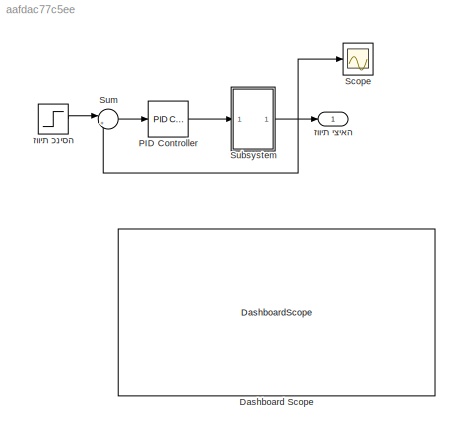
MODEL slx_aafdac77c5ee
KIND model
CONFIG AbsTol = auto
CONFIG EnableMultiTasking = off
CONFIG FixedStep = auto
CONFIG MaxStep = auto
CONFIG MinStep = auto
CONFIG RelTol = 1e-3
CONFIG SampleTimeConstraint = Unconstrained
CONFIG SolverName = VariableStepAuto
CONFIG StartTime = 0.0
CONFIG StopTime = 2
BLOCK [DashboardScope] Dashboard Scope
BLOCK [Reference] PID Controller  REF=slpidlib/PID Controller
  LibrarySourceBlock = simulink/Continuous/PID Controller
  SourceBlock = slpidlib/PID Controller
  SourceType = PID 1dof
BLOCK [Scope] Scope
  Floating = off
  NumInputPorts = 1
  ScopeSpecificationString = Simulink.scopes.TimeScopeBlockCfg('CurrentConfiguration', extmgr.ConfigurationSet(extmgr.Configuration('Core','General UI',true,'FigureColor',[1 1 1]),extmgr.Configuration('Core','Source UI',true),extmgr.Configuration('Sources','WiredSimulink',true),extmgr.Configuration('Visuals','Time Domain',true,'SerializedDisplays',{struct('MinYLimReal','-0.3899','MaxYLimReal','3.50912','YLabelReal','','MinYLi...<+1598ch>
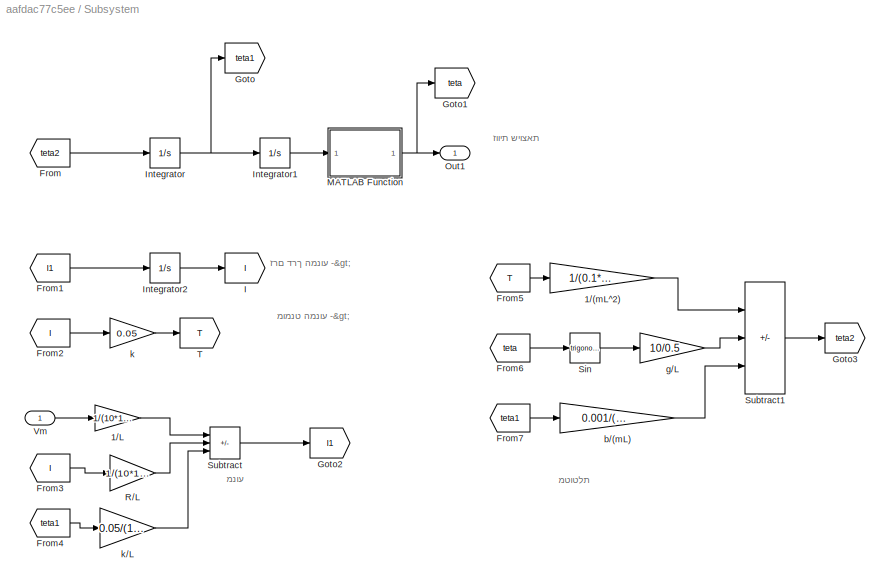
BLOCK [SubSystem] Subsystem
BLOCK [Gain] Subsystem/1//(mL^2)
  Gain = 1/(0.1*(0.5*10^-3)^2)
BLOCK [Gain] Subsystem/1//L
  Gain = 1/(10*10^-3)
BLOCK [From] Subsystem/From
  GotoTag = teta2
BLOCK [From] Subsystem/From1
  GotoTag = I1
BLOCK [From] Subsystem/From2
  GotoTag = I
BLOCK [From] Subsystem/From3
  GotoTag = I
BLOCK [From] Subsystem/From4
  GotoTag = teta1
BLOCK [From] Subsystem/From5
  GotoTag = T
BLOCK [From] Subsystem/From6
  GotoTag = teta
BLOCK [From] Subsystem/From7
  GotoTag = teta1
BLOCK [Goto] Subsystem/Goto
  GotoTag = teta1
BLOCK [Goto] Subsystem/Goto1
  GotoTag = teta
BLOCK [Goto] Subsystem/Goto2
  GotoTag = I1
BLOCK [Goto] Subsystem/Goto3
  GotoTag = teta2
BLOCK [Goto] Subsystem/I
  GotoTag = I
BLOCK [Integrator] Subsystem/Integrator
BLOCK [Integrator] Subsystem/Integrator1
BLOCK [Integrator] Subsystem/Integrator2
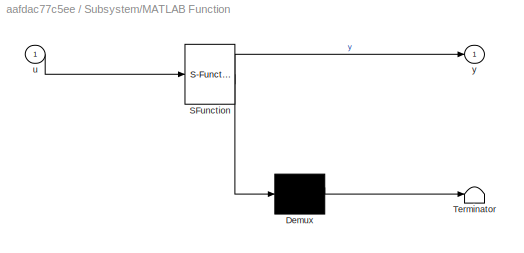
BLOCK [SubSystem] Subsystem/MATLAB Function
  ErrorFcn = Stateflow.Translate.translate
  PermitHierarchicalResolution = ExplicitOnly
  SFBlockType = MATLAB Function
  TreatAsAtomicUnit = on
BLOCK [Demux] Subsystem/MATLAB Function/ Demux 
  Outputs = 1
BLOCK [S-Function] Subsystem/MATLAB Function/ SFunction 
  EnableBusSupport = on
  FunctionName = sf_sfun
  PortCounts = [1 2]
  SFcnIsStateOwnerBlock = off
  SFunctionDeploymentMode = off
  Tag = Stateflow S-Function 2
BLOCK [Terminator] Subsystem/MATLAB Function/ Terminator 
BLOCK [Inport] Subsystem/MATLAB Function/u
BLOCK [Outport] Subsystem/MATLAB Function/y
BLOCK [Outport] Subsystem/Out1
BLOCK [Gain] Subsystem/R//L
  Gain = 1/(10*10^-3)
BLOCK [Trigonometry] Subsystem/Sin
BLOCK [Sum] Subsystem/Subtract
  IconShape = rectangular
  Inputs = +--
BLOCK [Sum] Subsystem/Subtract1
  IconShape = rectangular
  Inputs = +--
BLOCK [Goto] Subsystem/T
  GotoTag = T
BLOCK [Inport] Subsystem/Vm
BLOCK [Gain] Subsystem/b//(mL)
  Gain = 0.001/(0.1*0.5*10^-3)
BLOCK [Gain] Subsystem/g//L
  Gain = 10/0.5
BLOCK [Gain] Subsystem/k
  Gain = 0.05
BLOCK [Gain] Subsystem/k//L
  Gain = 0.05/(10*10^-3)
BLOCK [Sum] Sum
  Inputs = |+-
BLOCK [Outport] זווית יציאה
BLOCK [Step] זווית כניסה
  After = 3
  SampleTime = 0
  Time = 0.1
ANNOTATION Subsystem: מומנט המנוע ->
ANNOTATION Subsystem: זווית שיוצאת
ANNOTATION Subsystem: זרם דרך המנוע ->
ANNOTATION Subsystem: מטוטלת
ANNOTATION Subsystem: מנוע
LINE PID Controller:1 -> Subsystem:1
LINE Subsystem/1//(mL^2):1 -> Subsystem/Subtract1:1
LINE Subsystem/1//L:1 -> Subsystem/Subtract:1
LINE Subsystem/From1:1 -> Subsystem/Integrator2:1
LINE Subsystem/From2:1 -> Subsystem/k:1
LINE Subsystem/From3:1 -> Subsystem/R//L:1
LINE Subsystem/From4:1 -> Subsystem/k//L:1
LINE Subsystem/From5:1 -> Subsystem/1//(mL^2):1
LINE Subsystem/From6:1 -> Subsystem/Sin:1
LINE Subsystem/From7:1 -> Subsystem/b//(mL):1
LINE Subsystem/From:1 -> Subsystem/Integrator:1
LINE Subsystem/Integrator1:1 -> Subsystem/MATLAB Function:1
LINE Subsystem/Integrator2:1 -> Subsystem/I:1
NET Subsystem/Integrator:1 -> Subsystem/Goto:1, Subsystem/Integrator1:1
NET Subsystem/MATLAB Function:1 -> Subsystem/Goto1:1, Subsystem/Out1:1
LINE Subsystem/R//L:1 -> Subsystem/Subtract:2
LINE Subsystem/Sin:1 -> Subsystem/g//L:1
LINE Subsystem/Subtract1:1 -> Subsystem/Goto3:1
LINE Subsystem/Subtract:1 -> Subsystem/Goto2:1
LINE Subsystem/Vm:1 -> Subsystem/1//L:1
LINE Subsystem/b//(mL):1 -> Subsystem/Subtract1:3
LINE Subsystem/g//L:1 -> Subsystem/Subtract1:2
LINE Subsystem/k//L:1 -> Subsystem/Subtract:3
LINE Subsystem/k:1 -> Subsystem/T:1
NET Subsystem:1 -> Scope:1, Sum:2, זווית יציאה:1
LINE Sum:1 -> PID Controller:1
LINE זווית כניסה:1 -> Sum:1
note: NET lines group one-source signal fan-out (src -> all destinations, sorted); 1:1 wires keep LINE
CHART Subsystem/MATLAB Function states=1 transitions=1
  STATE_LABEL 'eML_blk_kernel()'
  STATE_LABEL 'SCRIPT:\nfunction y = fcn(u)\nif(u>pi)\n    u=mod(u,pi);\nend\ny = u;\n'
CHART  states=0 transitions=0
